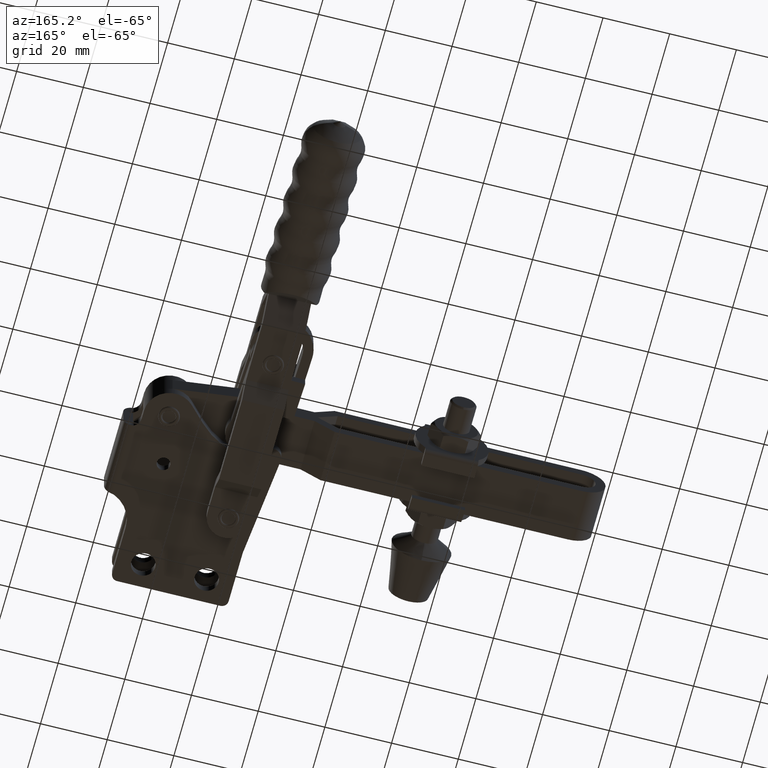
[diagram: clean part render]
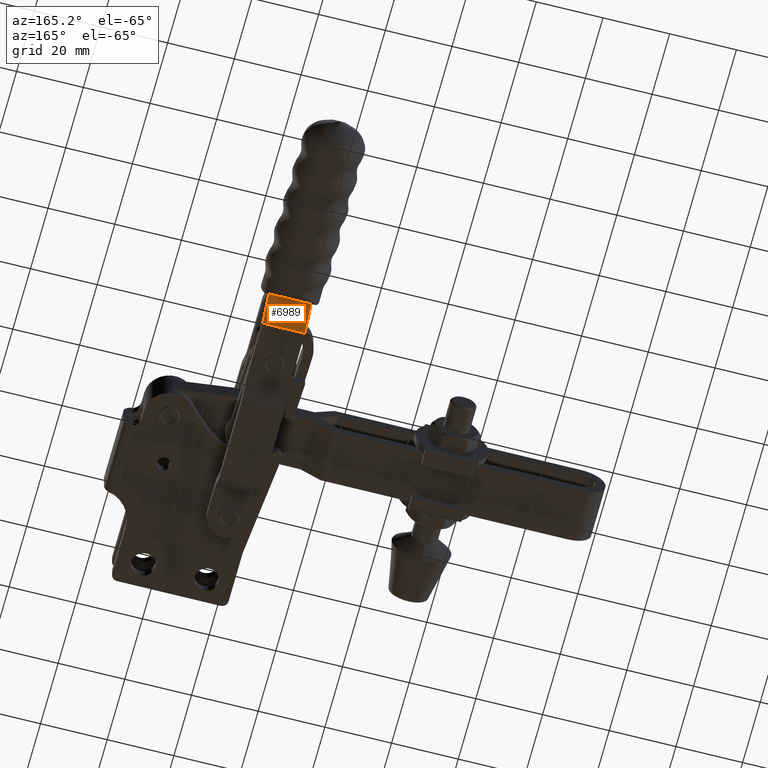
[diagram: same view with one face highlighted and labeled with its STEP entity id]
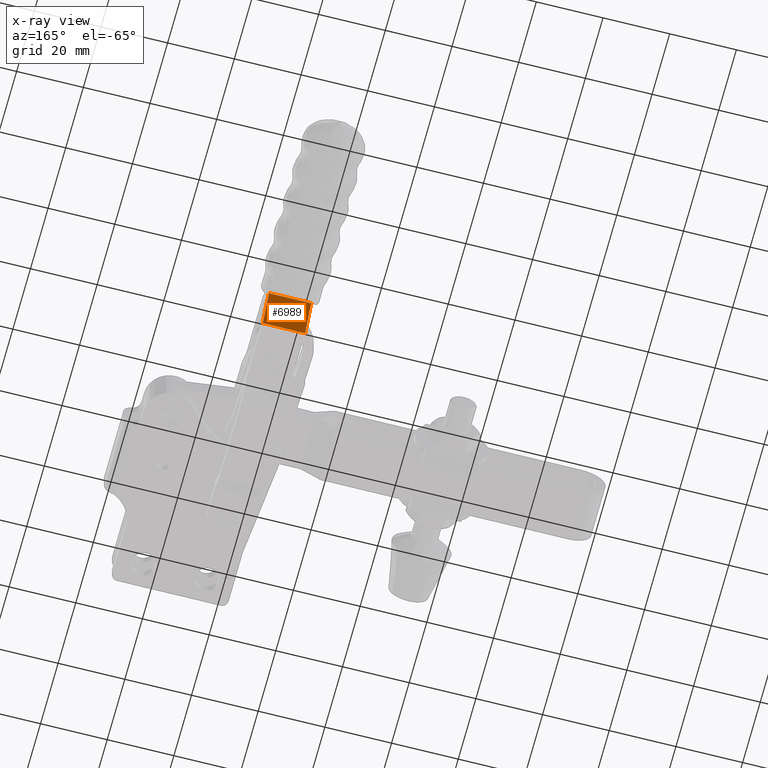
[diagram: x-ray of the same camera — body ghosted, the highlighted face saturated]
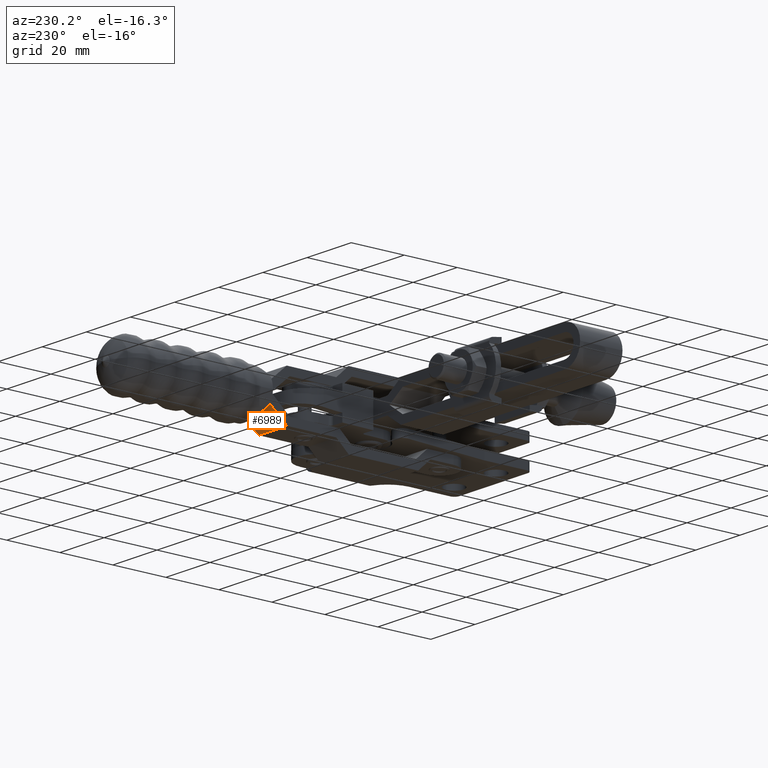
[diagram: same view with one face highlighted and labeled with its STEP entity id]
A machine part, auxiliary view. The second image highlights one B-rep face of the part: STEP entity #6989.
The next image is the same camera in x-ray: the body ghosted, the highlighted face saturated — about 0% of this face is hidden behind the body in this view.
A second angle (auxiliary view) of the same face is appended — the face is thin or edge-on in the first view.
In plain terms, the highlighted planar face has unit normal (-0, -0.657, 0.7539).
Its self-contained STEP definition (entity closure, byte-faithful):
#670 = EDGE_LOOP ( 'NONE', ( #6303, #4993, #7551, #11386 ) ) ;
#1189 = DIRECTION ( 'NONE',  ( -1.000000000000000000, 6.037836059286573500E-035, 7.000092359566945500E-019 ) ) ;
#1447 = VECTOR ( 'NONE', #1189, 1000.000000000000000 ) ;
#1568 = DIRECTION ( 'NONE',  ( -4.914215575483375600E-017, 0.7539095027499087600, 0.6569782809677847700 ) ) ;
#1855 = DIRECTION ( 'NONE',  ( -1.000000000000000000, 6.037836059286573500E-035, 7.000092359566945500E-019 ) ) ;
#2635 = CARTESIAN_POINT ( 'NONE',  ( -43.15000000000021200, 76.99999999999973000, -9.199999999999995700 ) ) ;
#2848 = CARTESIAN_POINT ( 'NONE',  ( -30.45000000000020900, 76.99999999999970200, -9.199999999999995700 ) ) ;
#3747 = EDGE_CURVE ( 'NONE', #8633, #11701, #12353, .T. ) ;
#4144 = EDGE_CURVE ( 'NONE', #11701, #7383, #8290, .T. ) ;
#4530 = LINE ( 'NONE', #5045, #9364 ) ;
#4833 = CARTESIAN_POINT ( 'NONE',  ( -30.45000000000020900, 76.99999999999970200, -9.199999999999995700 ) ) ;
#4880 = DIRECTION ( 'NONE',  ( -6.188014670768188000E-017, -0.7539095027499086400, -0.6569782809677846600 ) ) ;
#4993 = ORIENTED_EDGE ( 'NONE', *, *, #8167, .F. ) ;
#5045 = CARTESIAN_POINT ( 'NONE',  ( -30.45000000000020900, 76.99999999999970200, -9.199999999999995700 ) ) ;
#5288 = VECTOR ( 'NONE', #1855, 1000.000000000000000 ) ;
#6303 = ORIENTED_EDGE ( 'NONE', *, *, #4144, .T. ) ;
#6948 = DIRECTION ( 'NONE',  ( -4.914215575483375600E-017, 0.7539095027499087600, 0.6569782809677847700 ) ) ;
#6989 = ADVANCED_FACE ( 'NONE', ( #10343 ), #7736, .F. ) ;
#7383 = VERTEX_POINT ( 'NONE', #7513 ) ;
#7513 = CARTESIAN_POINT ( 'NONE',  ( -43.15000000000021900, 83.99999999999965900, -3.099999999999994300 ) ) ;
#7551 = ORIENTED_EDGE ( 'NONE', *, *, #11552, .F. ) ;
#7736 = PLANE ( 'NONE',  #11567 ) ;
#7914 = CARTESIAN_POINT ( 'NONE',  ( -30.45000000000020900, 83.99999999999963100, -3.099999999999995600 ) ) ;
#8167 = EDGE_CURVE ( 'NONE', #8272, #7383, #11055, .T. ) ;
#8272 = VERTEX_POINT ( 'NONE', #10920 ) ;
#8281 = CARTESIAN_POINT ( 'NONE',  ( -43.15000000000021200, 76.99999999999973000, -9.199999999999995700 ) ) ;
#8290 = LINE ( 'NONE', #8281, #10248 ) ;
#8581 = CARTESIAN_POINT ( 'NONE',  ( -30.45000000000020900, 76.99999999999970200, -9.199999999999995700 ) ) ;
#8633 = VERTEX_POINT ( 'NONE', #2848 ) ;
#9364 = VECTOR ( 'NONE', #6948, 1000.000000000000000 ) ;
#10248 = VECTOR ( 'NONE', #1568, 1000.000000000000000 ) ;
#10343 = FACE_OUTER_BOUND ( 'NONE', #670, .T. ) ;
#10629 = DIRECTION ( 'NONE',  ( -4.820246789765649200E-017, -0.6569782809677847700, 0.7539095027499087600 ) ) ;
#10920 = CARTESIAN_POINT ( 'NONE',  ( -30.45000000000020900, 83.99999999999963100, -3.099999999999995600 ) ) ;
#11055 = LINE ( 'NONE', #7914, #1447 ) ;
#11386 = ORIENTED_EDGE ( 'NONE', *, *, #3747, .T. ) ;
#11552 = EDGE_CURVE ( 'NONE', #8633, #8272, #4530, .T. ) ;
#11567 = AXIS2_PLACEMENT_3D ( 'NONE', #4833, #10629, #4880 ) ;
#11701 = VERTEX_POINT ( 'NONE', #2635 ) ;
#12353 = LINE ( 'NONE', #8581, #5288 ) ;